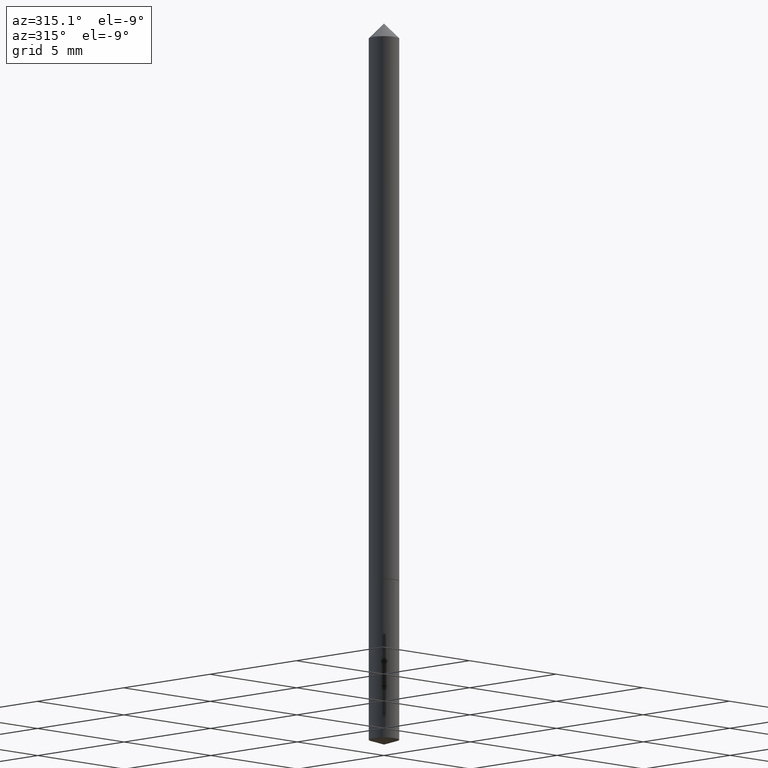
[diagram: clean part render]
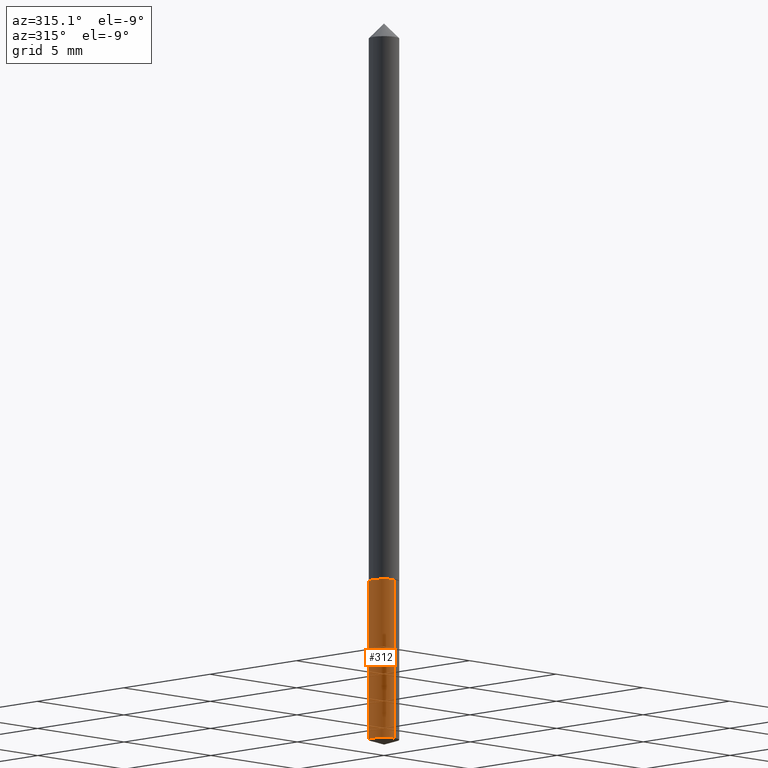
[diagram: same view with one face highlighted and labeled with its STEP entity id]
A machine part, auxiliary view. The second image highlights one B-rep face of the part: STEP entity #312.
In plain terms, the highlighted cylindrical surface (edge-blend (fillet) strip) has radius 0.6248 mm, axis along (-0, 0, 1).
Its self-contained STEP definition (entity closure, byte-faithful):
#4 = CARTESIAN_POINT ( 'NONE',  ( 1.747935129970070074E-16, 0.02459999999999680151, -0.9153000000000002245 ) ) ;
#9 = EDGE_CURVE ( 'NONE', #27, #173, #145, .T. ) ;
#13 = DIRECTION ( 'NONE',  ( -2.445338470937668711E-29, 3.491667986335741257E-15, 1.000000000000000000 ) ) ;
#17 = CARTESIAN_POINT ( 'NONE',  ( 2.869341662322656677E-29, -4.096755620504595601E-15, -1.173343649793576970 ) ) ;
#27 = VERTEX_POINT ( 'NONE', #152 ) ;
#30 = ORIENTED_EDGE ( 'NONE', *, *, #9, .F. ) ;
#33 = AXIS2_PLACEMENT_3D ( 'NONE', #168, #190, #130 ) ;
#38 = CARTESIAN_POINT ( 'NONE',  ( 1.747935129970133429E-16, 0.02459999999999680151, -0.9153000000000002245 ) ) ;
#41 = EDGE_CURVE ( 'NONE', #173, #333, #155, .T. ) ;
#50 = CARTESIAN_POINT ( 'NONE',  ( -1.717808818710597549E-16, -0.02460000000000319570, -0.9152999999999998915 ) ) ;
#54 = FACE_OUTER_BOUND ( 'NONE', #288, .T. ) ;
#73 = CARTESIAN_POINT ( 'NONE',  ( -1.717808818710534933E-16, -0.02460000000000410816, -1.173343649793576970 ) ) ;
#74 = AXIS2_PLACEMENT_3D ( 'NONE', #17, #328, #128 ) ;
#94 = EDGE_CURVE ( 'NONE', #200, #333, #235, .T. ) ;
#95 = DIRECTION ( 'NONE',  ( -2.445338470937668711E-29, 3.491667986335741257E-15, 1.000000000000000000 ) ) ;
#124 = VECTOR ( 'NONE', #350, 39.37007874015748143 ) ;
#128 = DIRECTION ( 'NONE',  ( -6.982962677686265922E-15, -1.000000000000000000, 5.552536572488340164E-15 ) ) ;
#130 = DIRECTION ( 'NONE',  ( -6.982962677686265922E-15, -1.000000000000000000, 5.552536572488340164E-15 ) ) ;
#141 = VECTOR ( 'NONE', #95, 39.37007874015748143 ) ;
#145 = LINE ( 'NONE', #4, #141 ) ;
#152 = CARTESIAN_POINT ( 'NONE',  ( 1.747935129970133676E-16, 0.02459999999999590986, -1.173343649793577192 ) ) ;
#155 = CIRCLE ( 'NONE', #348, 0.02460000000000000034 ) ;
#156 = DIRECTION ( 'NONE',  ( -6.982962677686265922E-15, -1.000000000000000000, 5.552536572488340164E-15 ) ) ;
#157 = CYLINDRICAL_SURFACE ( 'NONE', #33, 0.02460000000000000034 ) ;
#168 = CARTESIAN_POINT ( 'NONE',  ( 2.238337598301255656E-29, -3.195752869443131440E-15, -0.9153000000000001135 ) ) ;
#173 = VERTEX_POINT ( 'NONE', #38 ) ;
#190 = DIRECTION ( 'NONE',  ( -2.445338470937668711E-29, 3.491667986335741257E-15, 1.000000000000000000 ) ) ;
#193 = ORIENTED_EDGE ( 'NONE', *, *, #94, .T. ) ;
#200 = VERTEX_POINT ( 'NONE', #73 ) ;
#235 = LINE ( 'NONE', #343, #124 ) ;
#264 = CIRCLE ( 'NONE', #74, 0.02460000000000000034 ) ;
#278 = ORIENTED_EDGE ( 'NONE', *, *, #352, .T. ) ;
#288 = EDGE_LOOP ( 'NONE', ( #30, #278, #193, #362 ) ) ;
#312 = ADVANCED_FACE ( 'NONE', ( #54 ), #157, .T. ) ;
#322 = CARTESIAN_POINT ( 'NONE',  ( 2.238337598301255656E-29, -3.195752869443131440E-15, -0.9153000000000001135 ) ) ;
#328 = DIRECTION ( 'NONE',  ( -2.445338470937668711E-29, 3.491667986335741257E-15, 1.000000000000000000 ) ) ;
#333 = VERTEX_POINT ( 'NONE', #50 ) ;
#343 = CARTESIAN_POINT ( 'NONE',  ( -1.717808818710597549E-16, -0.02460000000000319570, -0.9152999999999998915 ) ) ;
#348 = AXIS2_PLACEMENT_3D ( 'NONE', #322, #13, #156 ) ;
#350 = DIRECTION ( 'NONE',  ( -2.445338470937668711E-29, 3.491667986335741257E-15, 1.000000000000000000 ) ) ;
#352 = EDGE_CURVE ( 'NONE', #27, #200, #264, .T. ) ;
#362 = ORIENTED_EDGE ( 'NONE', *, *, #41, .F. ) ;